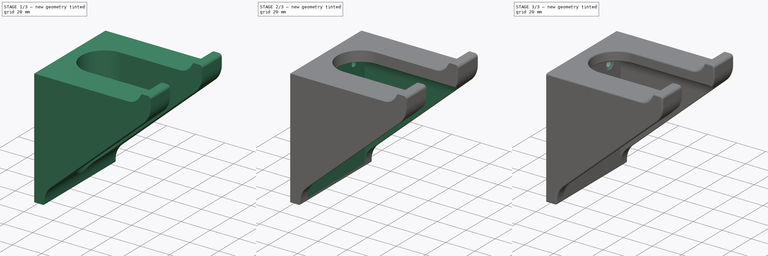
[diagram: build sequence overview — one tinted view per stage of 3, left to right]
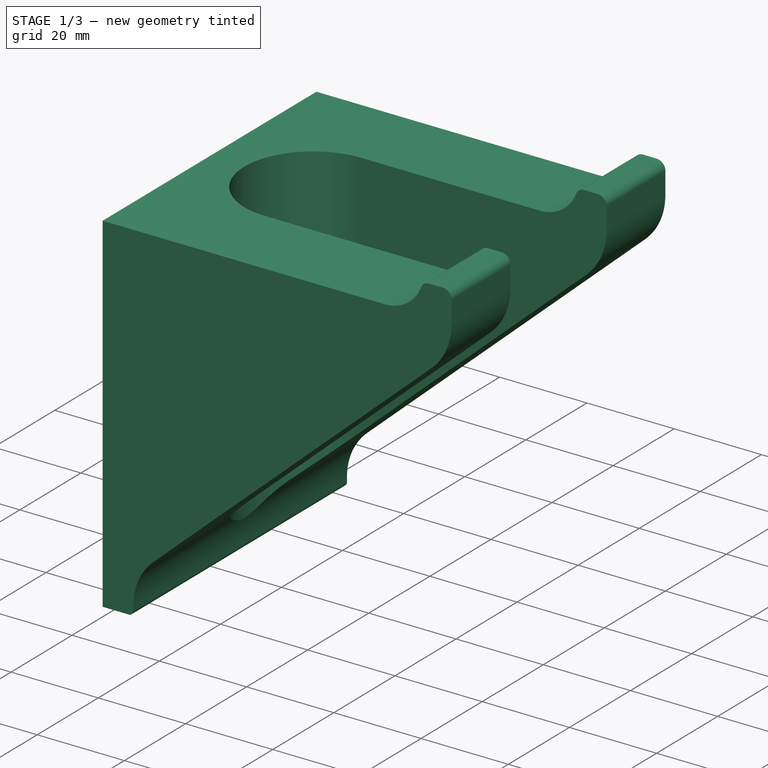
[diagram: stage 1 of 3 — iso view after this stage's code; geometry added in this stage tinted green]
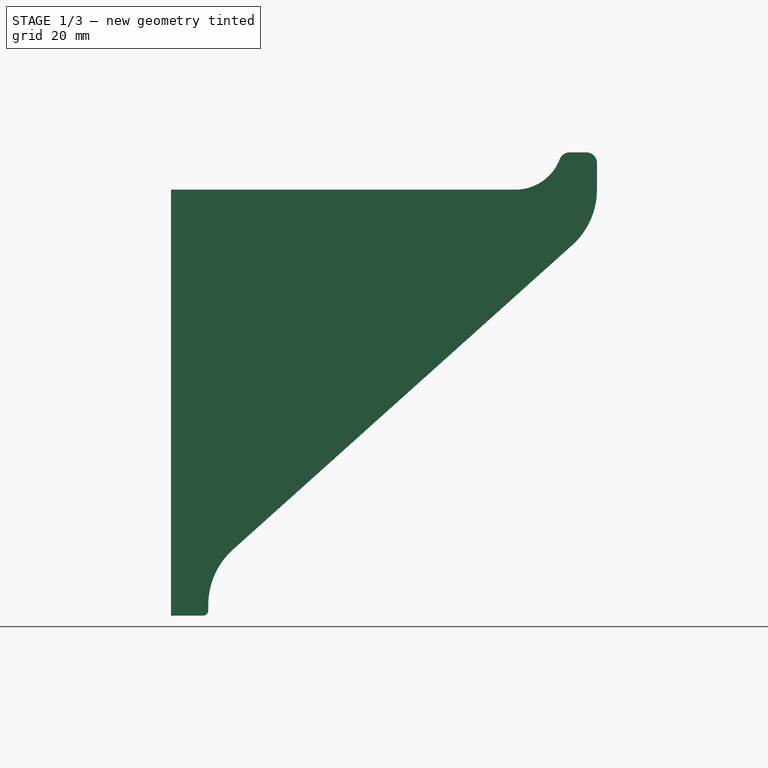
[diagram: stage 1 of 3 — front view after this stage's code; geometry added in this stage tinted green]
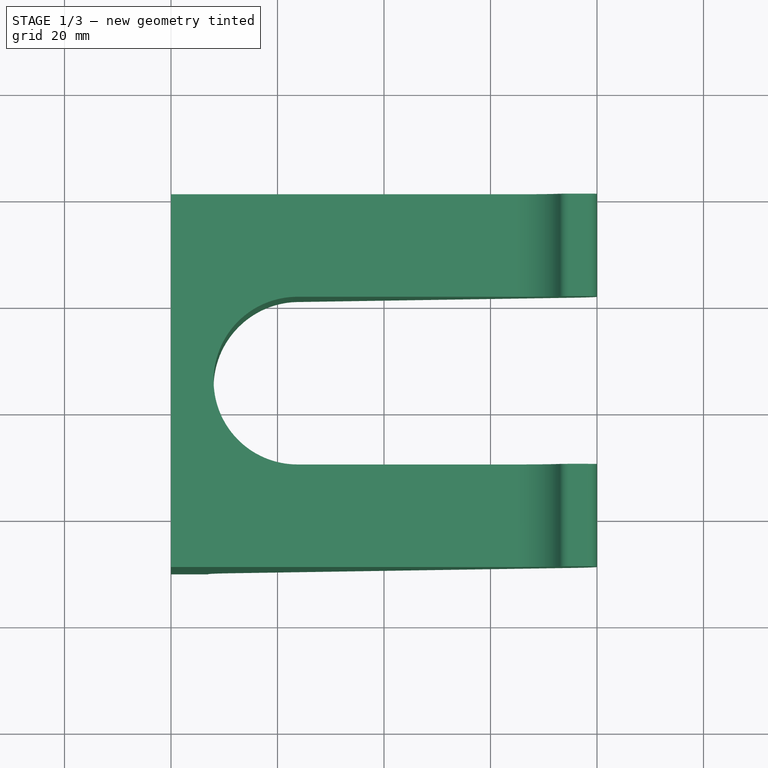
[diagram: stage 1 of 3 — top view after this stage's code; geometry added in this stage tinted green]
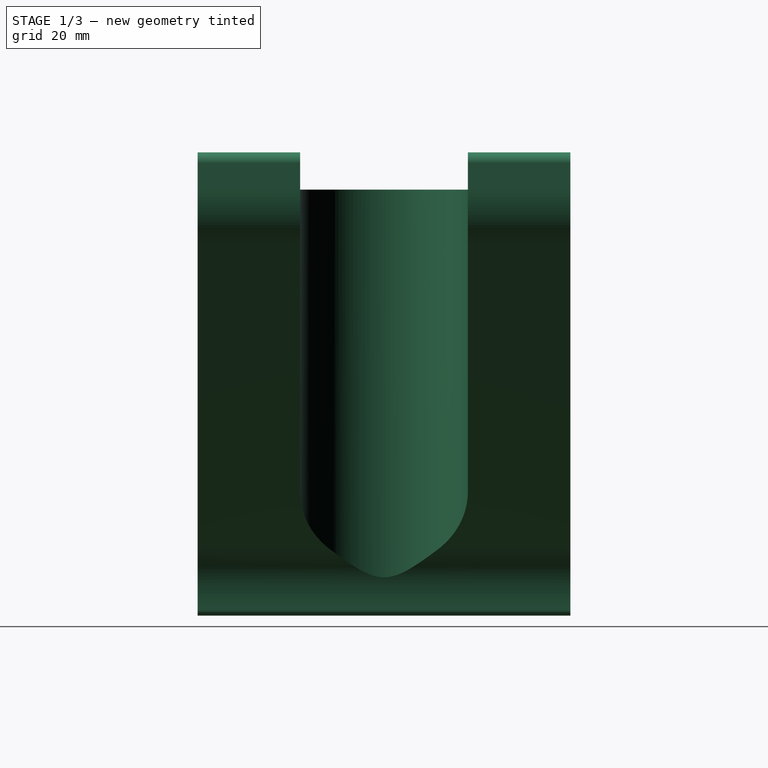
[diagram: stage 1 of 3 — right view after this stage's code; geometry added in this stage tinted green]
FCSTD DOCUMENT  (FreeCAD 1.0R39285 (Git))
Label: Barbell Mount
License: All rights reserved
LicenseURL: http://en.wikipedia.org/wiki/All_rights_reserved
objects: Sketcher::SketchObject×4, PartDesign::Pocket×3, PartDesign::Fillet×2, Spreadsheet::Sheet×1, PartDesign::Pad×1, PartDesign::Plane×1, PartDesign::Body×1
note: 28 computed .brp shape members not serialized (recipe doc carries the construction recipe); baked Part::Feature solids carry a one-line shape summary decoded from their .brp

FEATURE [Spreadsheet::Sheet] Spreadsheet
  cells = A1='back_plate_thickness; B1(back_plate_thickness)=7; A2='width; B2(width)=70; A3='depth; B3(depth)=80; A4='height; B4(height)=80; A5='horizontal_plate_thickness; B5(horizontal_plate_thickness)=7; A6='support_width; B6(support_width)=7; A7='support_frontal_edge_fillet; B7(support_frontal_edge_fillet)=14; A8='bump_height; B8(bump_height)=7; A9='bump_depth; B9(bump_depth)=7; A10='bump_angle; B10(bump_angle)=21; A11='bump_upper_edge_fillet; B11(bump_upper_edge_fillet)=2; A12='opening_width; B12(opening_width)=31.5; A13='general_fillet_radius; B13(general_fillet_radius)=1; A14='hole_diameter; B14(hole_diameter)=4.2; A15='hole_distance; B15(hole_distance)=35; A16='hole_distance_to_horizontal_plate; B16(hole_distance_to_horizontal_plate)=5; A17='hole_fillet_radius; B17(hole_fillet_radius)=2
FEATURE [Sketcher::SketchObject] Sketch
  ArcFitTolerance = 1e-06
  AttachmentSupport = -> [XZ_Plane]
  FullyConstrained = true
  MakeInternals = false
  MapMode = 5
  Placement = pos=(0,0,0) rot=(1,0,0;1.5708rad)
  expr: Constraints[18] = Spreadsheet.bump_upper_edge_fillet
  expr: Constraints[21] = Spreadsheet.bump_angle
  expr: Constraints[22] = Spreadsheet.bump_depth
  expr: Constraints[30] = Spreadsheet.general_fillet_radius
  expr: Constraints[32] = Spreadsheet.support_frontal_edge_fillet
  expr: Constraints[38] = Spreadsheet.support_frontal_edge_fillet
  expr: Constraints[39] = Spreadsheet.depth
  expr: Constraints[40] = Spreadsheet.bump_height
  expr: Constraints[4] = Spreadsheet.height
  expr: Constraints[5] = Spreadsheet.back_plate_thickness
  sketch-geometry (14):
    g0: LineSegment StartX=0 StartY=-3.4e-15 StartZ=0 EndX=64.6821 EndY=-3.4e-15 EndZ=0
    g1: LineSegment StartX=75.3501 StartY=-10.4199 StartZ=0 EndX=11.6499 EndY=-67.5801 EndZ=0
    g2: LineSegment StartX=0 StartY=-80 StartZ=0 EndX=0 EndY=0 EndZ=0
    g3: LineSegment StartX=80 StartY=-3.4e-15 StartZ=0 EndX=80 EndY=5 EndZ=0
    g4: ArcOfCircle CenterX=78 CenterY=5 CenterZ=0 NormalX=0 NormalY=0 NormalZ=1 AngleXU=0 Radius=2 StartAngle=0 EndAngle=1.5708
    g5: LineSegment StartX=78 StartY=7 StartZ=0 EndX=74.8672 EndY=7 EndZ=0
    g6: ArcOfCircle CenterX=74.8672 CenterY=5 CenterZ=0 NormalX=0 NormalY=0 NormalZ=1 AngleXU=0 Radius=2 StartAngle=1.5708 EndAngle=2.77507
    g7: ArcOfCircle CenterX=64.6821 CenterY=8.90968 CenterZ=0 NormalX=0 NormalY=0 NormalZ=1 AngleXU=0 Radius=8.90968 StartAngle=4.71239 EndAngle=5.91667
    g8: LineSegment [constr] StartX=64.6821 StartY=8.90968 StartZ=0 EndX=74.8672 EndY=5 EndZ=0
    g9: LineSegment StartX=0 StartY=-80 StartZ=0 EndX=6 EndY=-80 EndZ=0
    g10: LineSegment StartX=7 StartY=-78 StartZ=0 EndX=7 EndY=-79 EndZ=0
    g11: ArcOfCircle CenterX=6 CenterY=-79 CenterZ=0 NormalX=0 NormalY=0 NormalZ=1 AngleXU=0 Radius=1 StartAngle=4.71239 EndAngle=6.28319
    g12: ArcOfCircle CenterX=21 CenterY=-78 CenterZ=0 NormalX=0 NormalY=0 NormalZ=1 AngleXU=0 Radius=14 StartAngle=2.30213 EndAngle=3.14159
    g13: ArcOfCircle CenterX=66 CenterY=1e-16 CenterZ=0 NormalX=0 NormalY=0 NormalZ=1 AngleXU=0 Radius=14 StartAngle=5.44373 EndAngle=6.28319
  constraints (41):
    c: Coincident(g0,g-1)
    c: Horizontal(g0)
    c: Coincident(g2,g0)
    c: Vertical(g2)
    c: DistanceY(g2,g2) = 80
    c: DistanceX(g2,g10) = 7
    c: Vertical(g3)
    c: Coincident(g4,g3)
    c: Coincident(g5,g4)
    c: Horizontal(g5)
    c: Coincident(g6,g5)
    c: Coincident(g7,g0)
    c: Horizontal(g3,g4)
    c: Horizontal(g6,g4)
    c: Vertical(g6,g5)
    c: Vertical(g4,g4)
    c: Tangent(g7,g6) = 1.5708
    c: Vertical(g7,g0)
    c: Radius(g6) = 2
    c: Coincident(g8,g7)
    c: Coincident(g8,g6)
    c: Angle(g8,g-1) = 0.366519
    c: DistanceX(g6,g3) = 7
    c: Coincident(g9,g2)
    c: Horizontal(g9)
    c: Vertical(g10)
    c: Coincident(g11,g9)
    c: Coincident(g11,g10)
    c: Vertical(g11,g9)
    c: Horizontal(g11,g10)
    c: Radius(g11) = 1
    c: DistanceY(g10,g10) = 1
    c: Radius(g13) = 14
    c: Horizontal(g0,g3)
    c: Tangent(g13,g3) = -1.5708
    c: Tangent(g13,g1) = 1.5708
    c: Tangent(g12,g1) = -1.5708
    c: Tangent(g12,g10) = -1.5708
    c: Radius(g12) = 14
    c: DistanceX(g0,g3) = 80
    c: DistanceY(g3,g4) = 7
FEATURE [PartDesign::Pad] Pad
  Direction = (0,-1,2e-16)
  Length = 70
  Length2 = 10
  Placement = pos=(0,0,0) rot=(1,0,0;1.5708rad)
  Profile = -> Sketch
  ReferenceAxis = -> Sketch [N_Axis]
  Suppressed = false
  Type = 0
  expr: Length = Spreadsheet.width
FEATURE [Sketcher::SketchObject] Sketch001
  ArcFitTolerance = 1e-06
  AttachmentSupport = -> [Pad]
  FullyConstrained = true
  MakeInternals = false
  MapMode = 5
  Placement = pos=(0,0,-3.4e-15) rot=(0,0,1;3.14159rad)
  expr: Constraints[12] = Spreadsheet.opening_width / 2 + Spreadsheet.back_plate_thickness + Spreadsheet.general_fillet_radius
  expr: Constraints[7] = Spreadsheet.depth
  expr: Constraints[8] = Spreadsheet.opening_width
  expr: Constraints[9] = Spreadsheet.width / 2
  sketch-geometry (4):
    g0: ArcOfCircle CenterX=-23.75 CenterY=35 CenterZ=0 NormalX=0 NormalY=0 NormalZ=1 AngleXU=0 Radius=15.75 StartAngle=4.71239 EndAngle=7.85398
    g1: LineSegment StartX=-23.75 StartY=50.75 StartZ=0 EndX=-80 EndY=50.75 EndZ=0
    g2: LineSegment StartX=-23.75 StartY=19.25 StartZ=0 EndX=-80 EndY=19.25 EndZ=0
    g3: LineSegment StartX=-80 StartY=50.75 StartZ=0 EndX=-80 EndY=19.25 EndZ=0
  constraints (13):
    c: Coincident(g1,g0)
    c: Horizontal(g1)
    c: Coincident(g2,g0)
    c: Horizontal(g2)
    c: Coincident(g3,g1)
    c: Coincident(g3,g2)
    c: Vertical(g3)
    c: DistanceX(g2,g-1) = 80
    c: DistanceY(g0,g0) = 31.5
    c: DistanceY(g-1,g0) = 35
    c: Vertical(g0,g0)
    c: Vertical(g0,g0)
    c: DistanceX(g0,g-1) = 23.75
FEATURE [PartDesign::Pocket] Pocket
  BaseFeature = -> Pad
  Direction = (0,0,-1)
  Length = 5
  Length2 = 5
  Midplane = true
  Placement = pos=(0,0,0) rot=(1,0,0;1.5708rad)
  Profile = -> Sketch001
  ReferenceAxis = -> Sketch001 [N_Axis]
  Suppressed = false
  Type = 1
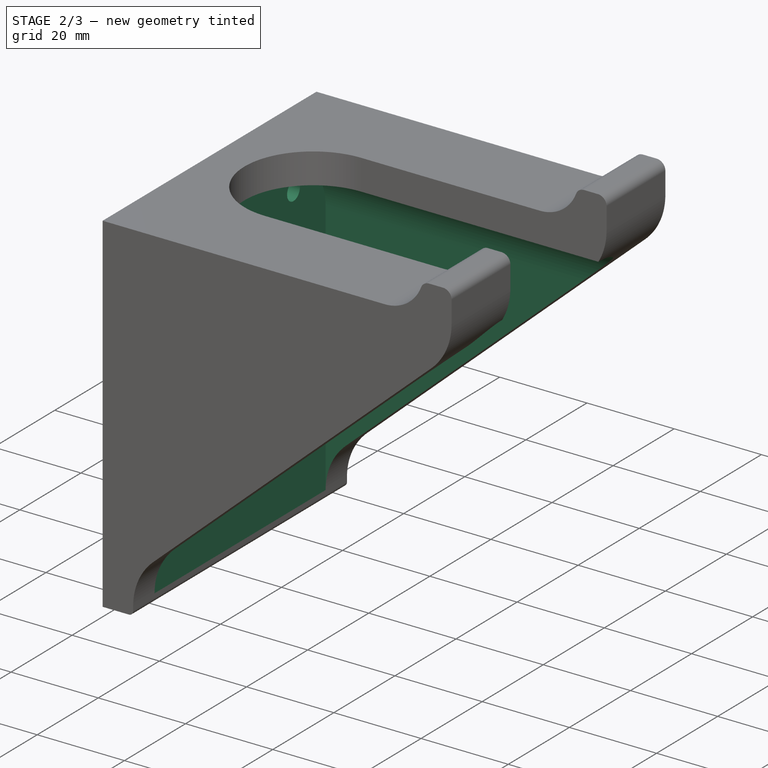
[diagram: stage 2 of 3 — iso view after this stage's code; geometry added in this stage tinted green]
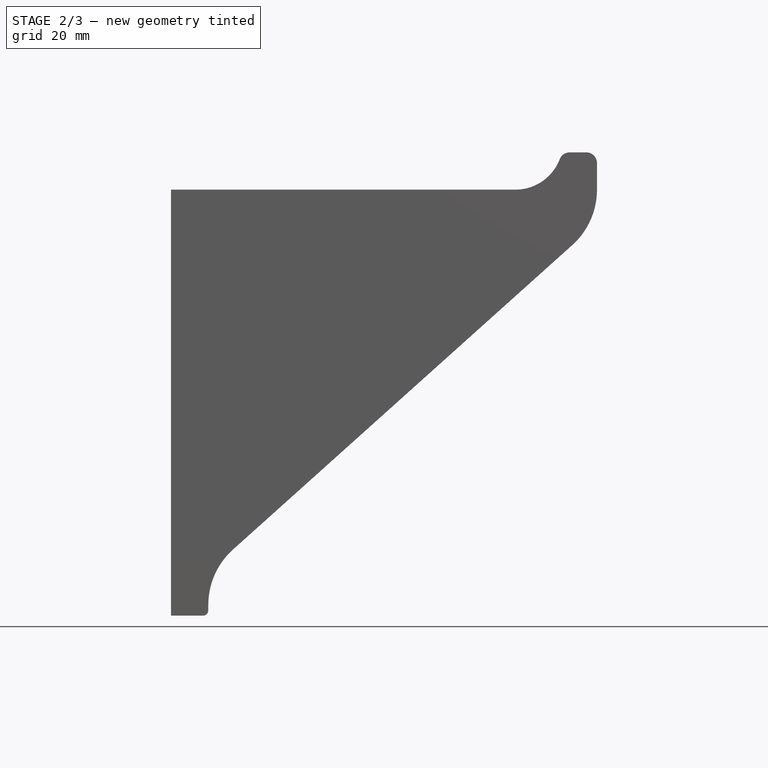
[diagram: stage 2 of 3 — front view after this stage's code; geometry added in this stage tinted green]
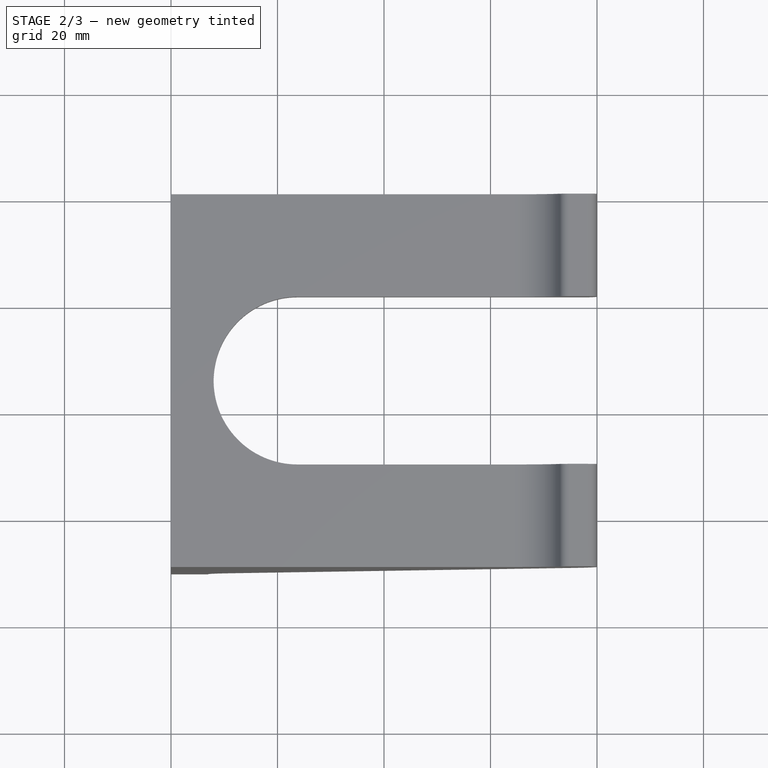
[diagram: stage 2 of 3 — top view after this stage's code; geometry added in this stage tinted green]
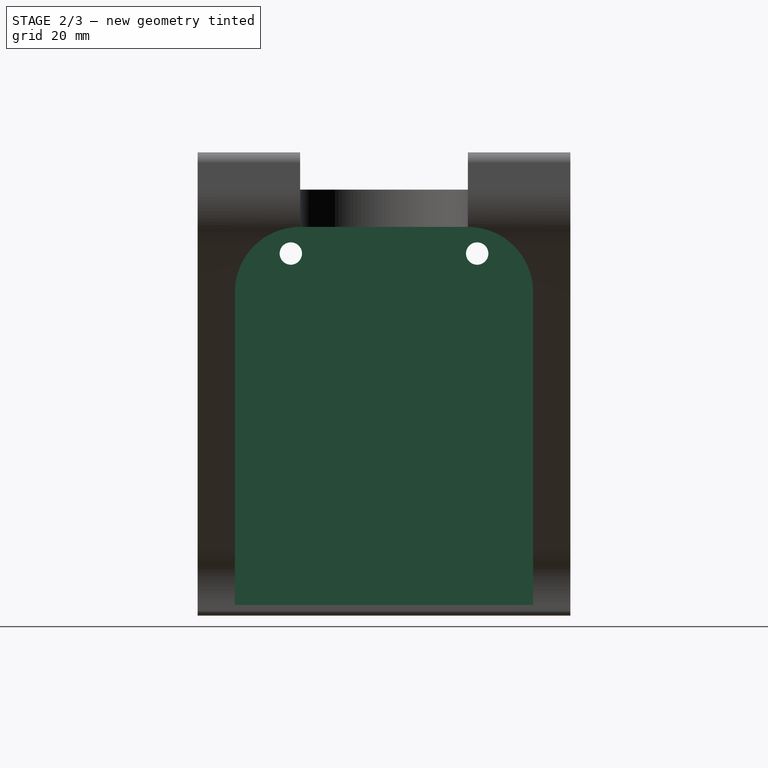
[diagram: stage 2 of 3 — right view after this stage's code; geometry added in this stage tinted green]
FEATURE [PartDesign::Plane] DatumPlane
  AttachmentOffset = pos=(0,0,7) rot=(0,0,1;0rad)
  AttachmentSupport = -> [Pocket]
  Length = 124.975
  MapMode = 5
  Placement = pos=(7,0,-1.6e-15) rot=(0.707107,0,0.707107;3.14159rad)
  ResizeMode = 0
  Width = 114.975
  expr: .AttachmentOffset.Base.z = Spreadsheet.back_plate_thickness
FEATURE [Sketcher::SketchObject] Sketch002
  ArcFitTolerance = 1e-06
  AttachmentSupport = -> [DatumPlane]
  FullyConstrained = true
  MakeInternals = false
  MapMode = 5
  Placement = pos=(7,0,-1.6e-15) rot=(0.707107,0,0.707107;3.14159rad)
  expr: Constraints[10] = (Spreadsheet.width - Spreadsheet.opening_width) / 2 - Spreadsheet.support_width
  expr: Constraints[18] = Spreadsheet.depth
  expr: Constraints[19] = Spreadsheet.horizontal_plate_thickness
  expr: Constraints[8] = Spreadsheet.opening_width
  expr: Constraints[9] = (Spreadsheet.width - Spreadsheet.opening_width) / 2
  sketch-geometry (6):
    g0: LineSegment StartX=-7 StartY=50.75 StartZ=0 EndX=-7 EndY=19.25 EndZ=0
    g1: ArcOfCircle CenterX=-19.25 CenterY=50.75 CenterZ=0 NormalX=0 NormalY=0 NormalZ=1 AngleXU=0 Radius=12.25 StartAngle=0 EndAngle=1.5708
    g2: ArcOfCircle CenterX=-19.25 CenterY=19.25 CenterZ=0 NormalX=0 NormalY=0 NormalZ=1 AngleXU=0 Radius=12.25 StartAngle=4.71239 EndAngle=6.28319
    g3: LineSegment StartX=-19.25 StartY=7 StartZ=0 EndX=-80 EndY=7 EndZ=0
    g4: LineSegment StartX=-80 StartY=7 StartZ=0 EndX=-80 EndY=63 EndZ=0
    g5: LineSegment StartX=-80 StartY=63 StartZ=0 EndX=-19.25 EndY=63 EndZ=0
  constraints (20):
    c: Vertical(g0)
    c: Coincident(g1,g0)
    c: Coincident(g2,g0)
    c: Vertical(g1,g2)
    c: Horizontal(g1,g0)
    c: Horizontal(g2,g0)
    c: Vertical(g1,g1)
    c: Vertical(g2,g2)
    c: DistanceY(g2,g1) = 31.5
    c: DistanceY(g-1,g2) = 19.25
    c: Radius(g2) = 12.25
    c: Coincident(g3,g2)
    c: Horizontal(g3)
    c: Coincident(g4,g3)
    c: Vertical(g4)
    c: Coincident(g5,g4)
    c: Coincident(g5,g1)
    c: Horizontal(g5)
    c: DistanceX(g3,g-1) = 80
    c: DistanceX(g0,g-1) = 7
FEATURE [PartDesign::Pocket] Pocket001
  BaseFeature = -> Pocket
  Direction = (-1,0,2e-16)
  Length = 5
  Length2 = 5
  Placement = pos=(0,0,0) rot=(1,0,0;1.5708rad)
  Profile = -> Sketch002
  ReferenceAxis = -> Sketch002 [N_Axis]
  Reversed = true
  Suppressed = false
  Type = 1
FEATURE [Sketcher::SketchObject] Sketch003
  ArcFitTolerance = 1e-06
  AttachmentSupport = -> [Pocket001]
  FullyConstrained = true
  MakeInternals = false
  MapMode = 5
  Placement = pos=(7,0,0) rot=(0.707107,0,0.707107;3.14159rad)
  expr: Constraints[0] = Spreadsheet.hole_diameter
  expr: Constraints[1] = Spreadsheet.hole_diameter
  expr: Constraints[2] = Spreadsheet.hole_distance
  expr: Constraints[3] = (Spreadsheet.width - Spreadsheet.hole_distance) / 2
  expr: Constraints[5] = Spreadsheet.horizontal_plate_thickness + Spreadsheet.hole_distance_to_horizontal_plate
  sketch-geometry (2):
    g0: Circle CenterX=-12 CenterY=52.5 CenterZ=0 NormalX=0 NormalY=0 NormalZ=1 AngleXU=0 Radius=2.1
    g1: Circle CenterX=-12 CenterY=17.5 CenterZ=0 NormalX=0 NormalY=0 NormalZ=1 AngleXU=0 Radius=2.1
  constraints (6):
    c: Diameter(g0) = 4.2
    c: Diameter(g1) = 4.2
    c: DistanceY(g1,g0) = 35
    c: DistanceY(g-1,g1) = 17.5
    c: Vertical(g0,g1)
    c: DistanceX(g1,g-1) = 12
FEATURE [PartDesign::Pocket] Pocket002
  BaseFeature = -> Pocket001
  Direction = (-1,0,2e-16)
  Length = 5
  Length2 = 5
  Placement = pos=(0,0,0) rot=(1,0,0;1.5708rad)
  Profile = -> Sketch003
  ReferenceAxis = -> Sketch003 [N_Axis]
  Suppressed = false
  Type = 1
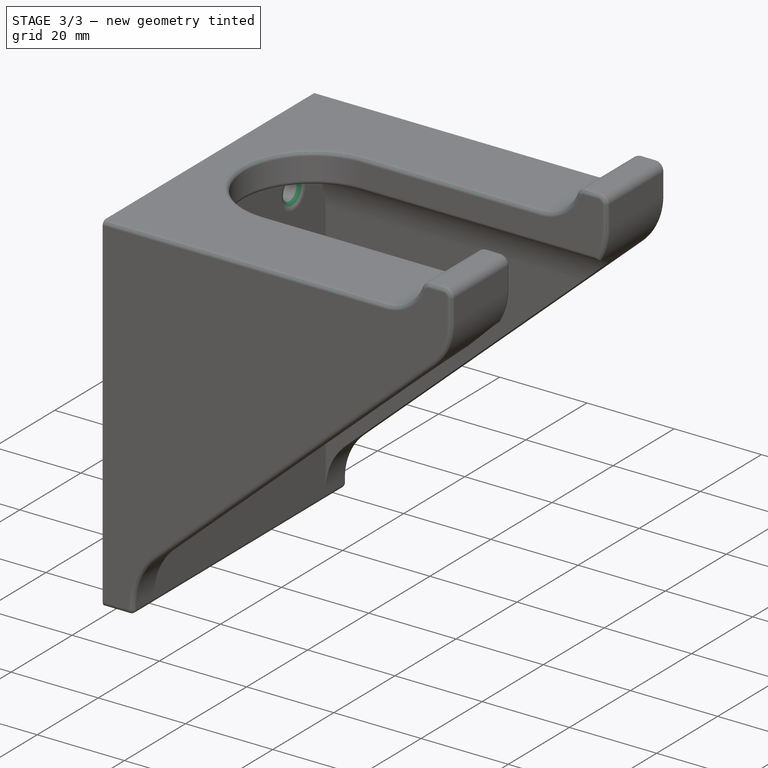
[diagram: stage 3 of 3 — iso view after this stage's code; geometry added in this stage tinted green]
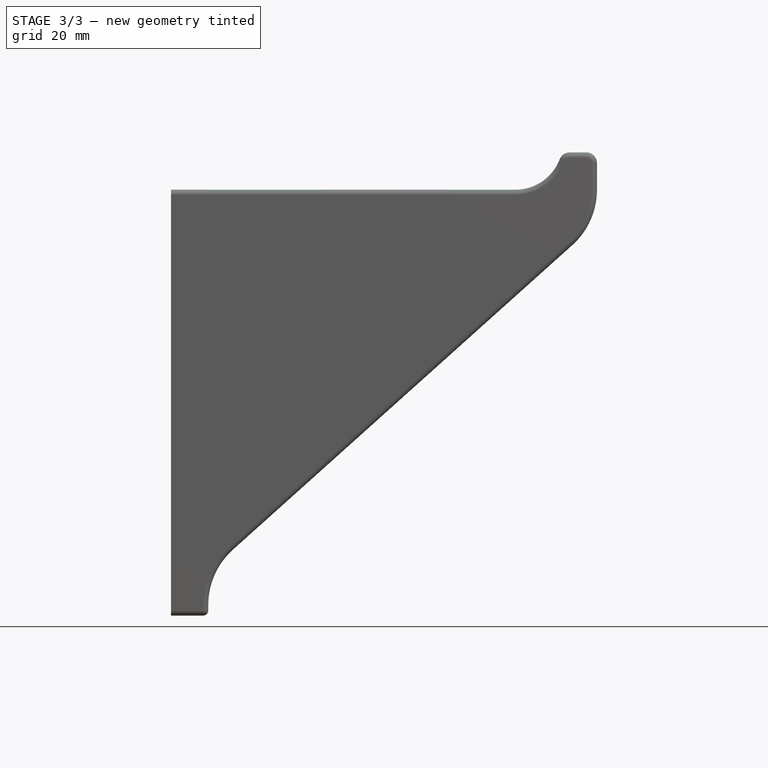
[diagram: stage 3 of 3 — front view after this stage's code; geometry added in this stage tinted green]
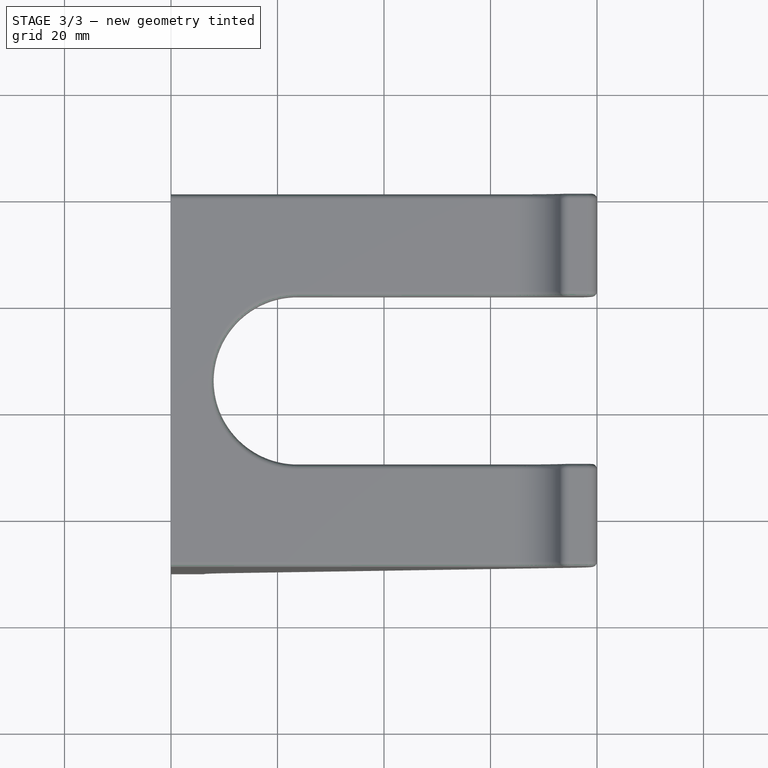
[diagram: stage 3 of 3 — top view after this stage's code; geometry added in this stage tinted green]
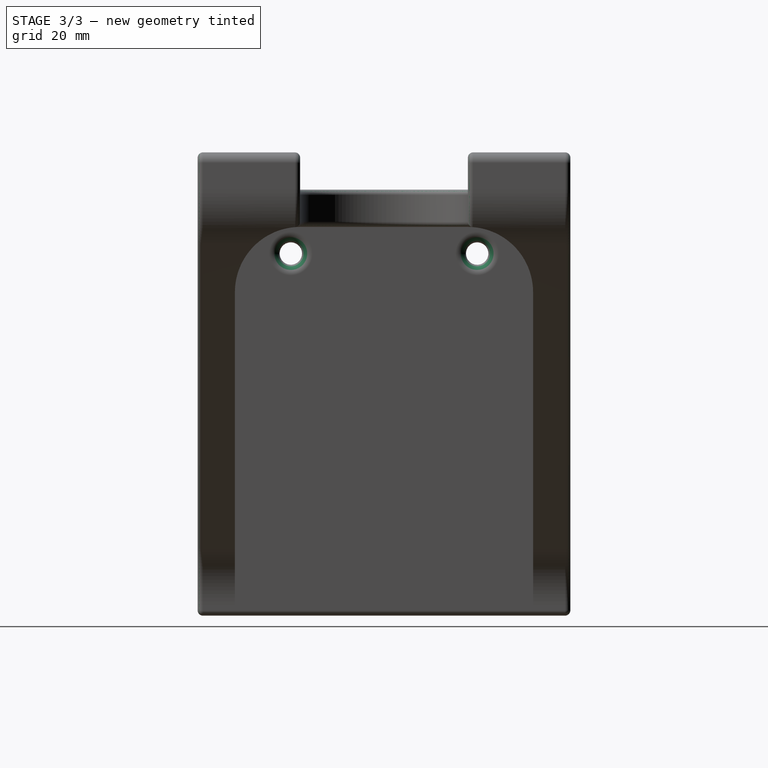
[diagram: stage 3 of 3 — right view after this stage's code; geometry added in this stage tinted green]
FEATURE [PartDesign::Fillet] Fillet
  Base = -> Pocket002 [Edge21,Edge34,Edge85,Edge10]
  BaseFeature = -> Pocket002
  Placement = pos=(0,0,0) rot=(1,0,0;1.5708rad)
  Radius = 1
  SupportTransform = false
  Suppressed = false
  UseAllEdges = false
FEATURE [PartDesign::Fillet] Fillet001
  Base = -> Fillet [Edge49,Edge47]
  BaseFeature = -> Fillet
  Placement = pos=(0,0,0) rot=(1,0,0;1.5708rad)
  Radius = 2
  SupportTransform = false
  Suppressed = false
  UseAllEdges = false
  expr: Radius = Spreadsheet.hole_fillet_radius
FEATURE [PartDesign::Body] Body
  AllowCompound = false
  Group = -> [Sketch,Pad,Sketch001,Pocket,DatumPlane,Sketch002,Pocket001,Sketch003,Pocket002,Fillet,Fillet001]
  Origin = -> Origin
  Tip = -> Fillet001
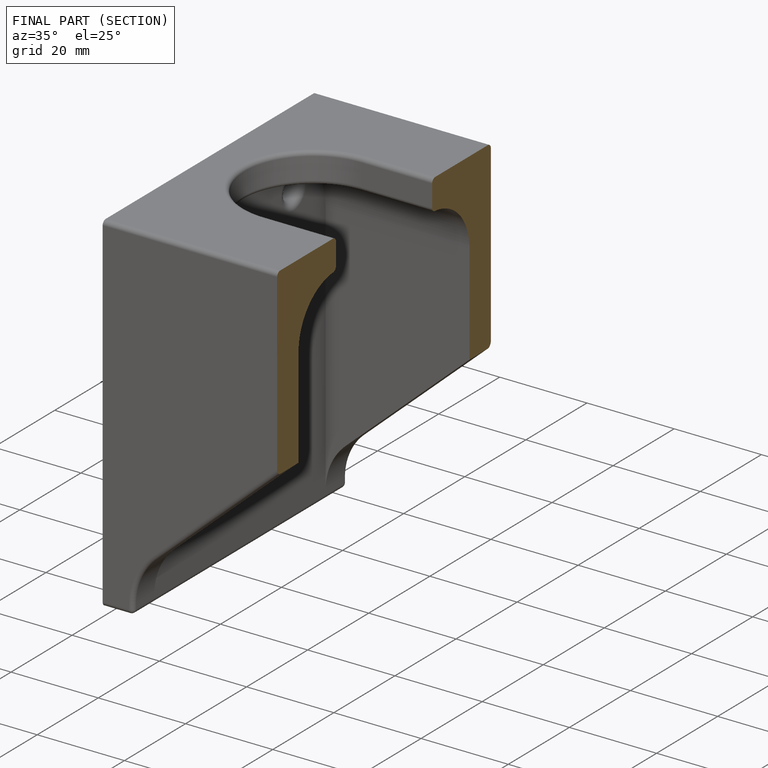
[diagram: finished part — half-section view (interior)]
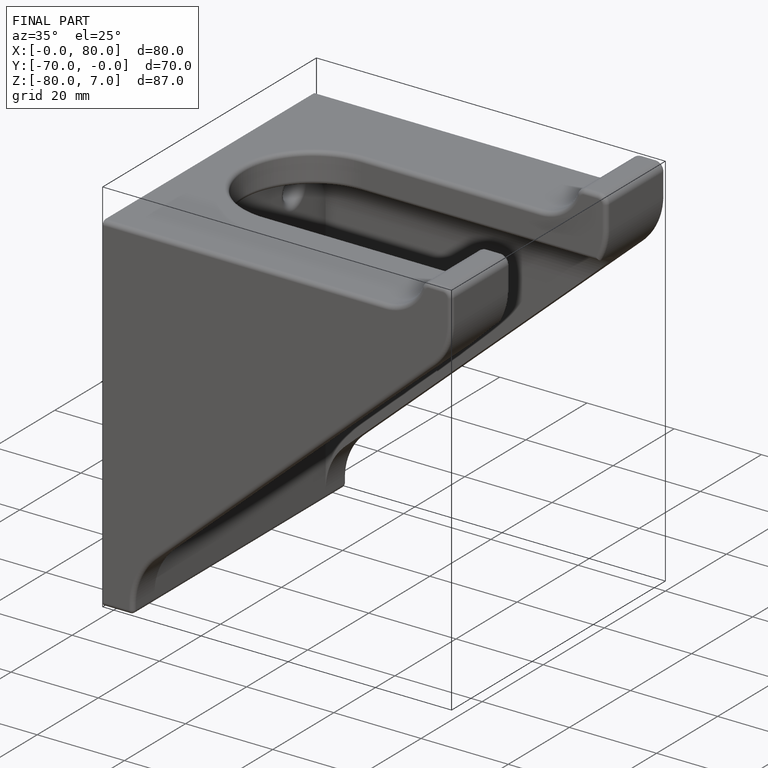
[diagram: finished part — iso view with bounding-box wireframe]
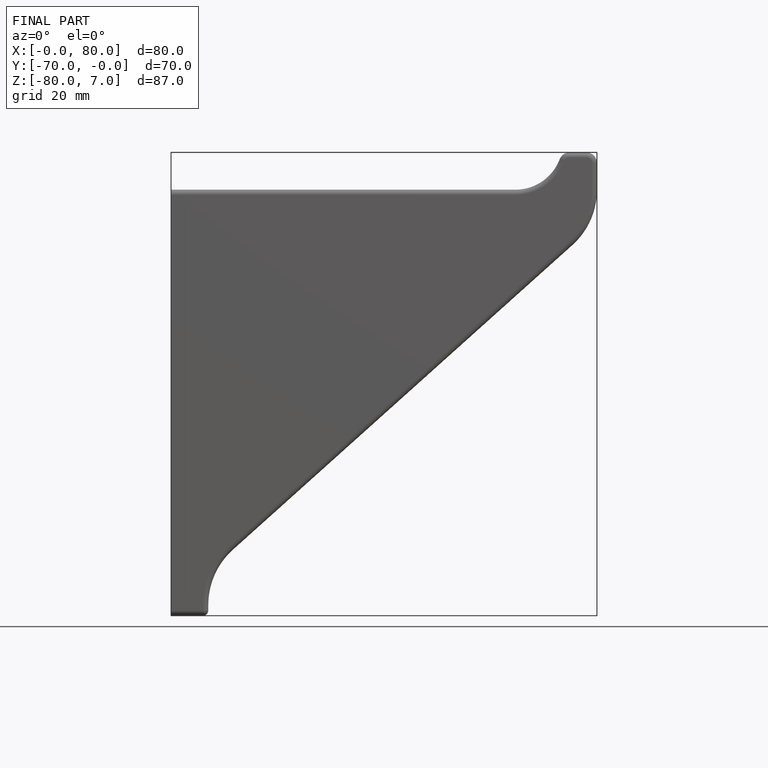
[diagram: finished part — front view with bounding-box wireframe]
